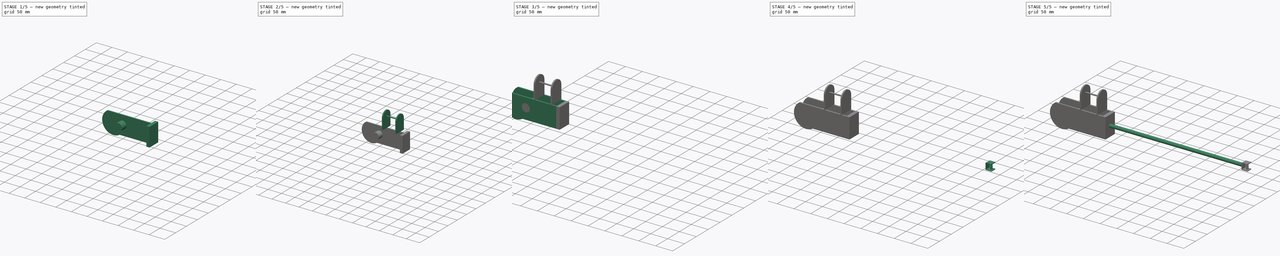
[diagram: build sequence overview — one tinted view per stage of 5, left to right]
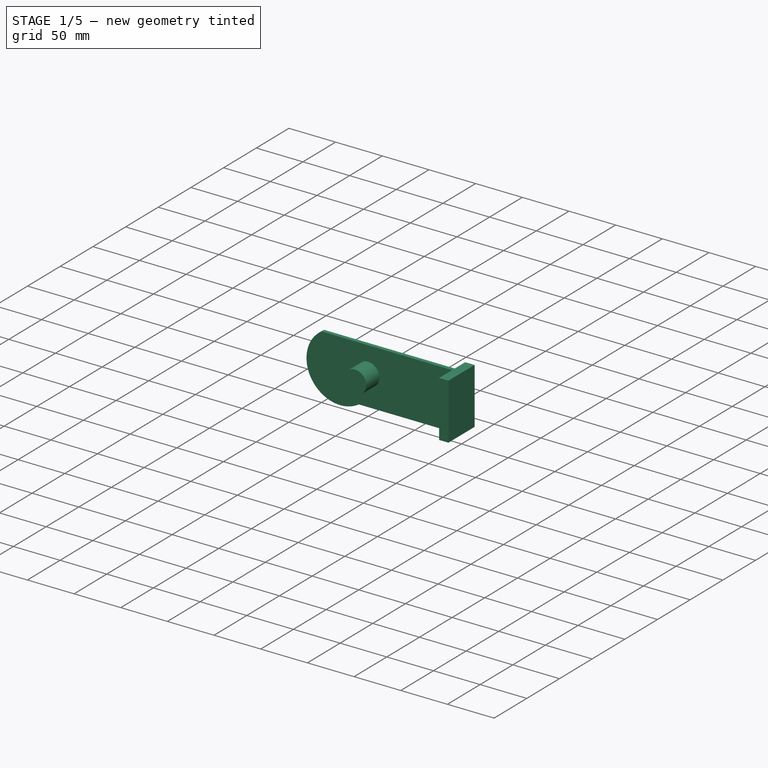
[diagram: stage 1 of 5 — iso view after this stage's code; geometry added in this stage tinted green]
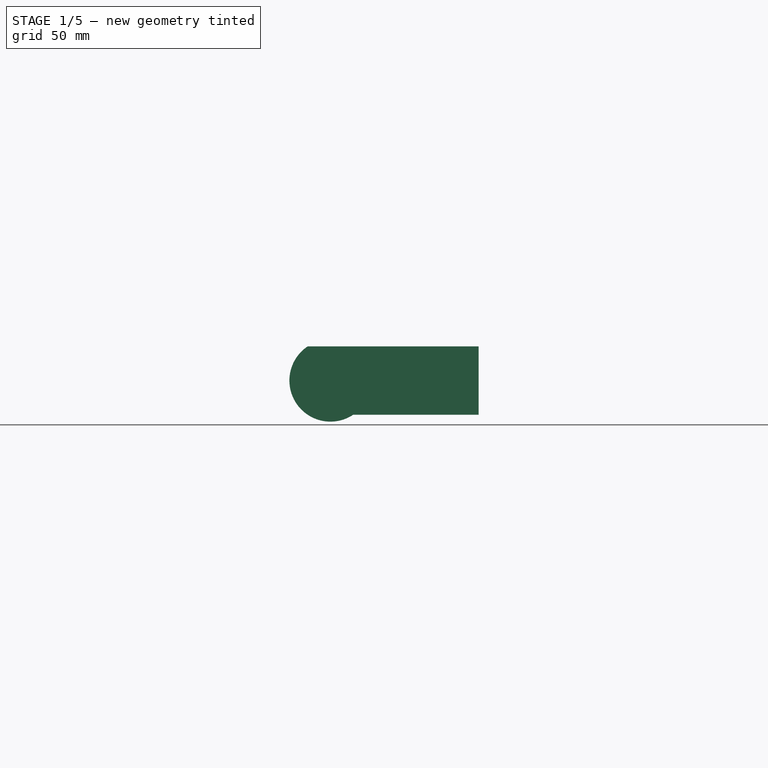
[diagram: stage 1 of 5 — front view after this stage's code; geometry added in this stage tinted green]
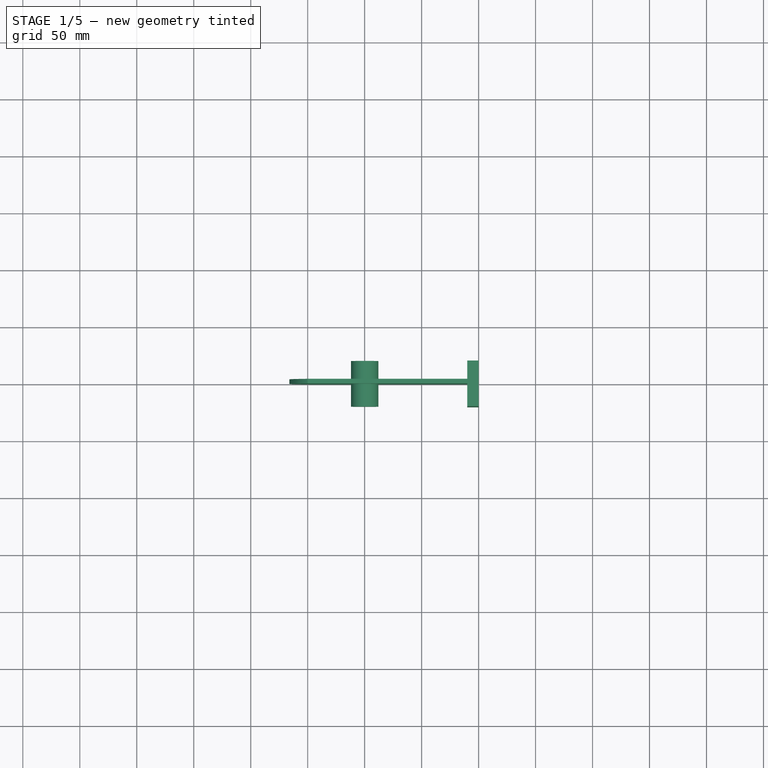
[diagram: stage 1 of 5 — top view after this stage's code; geometry added in this stage tinted green]
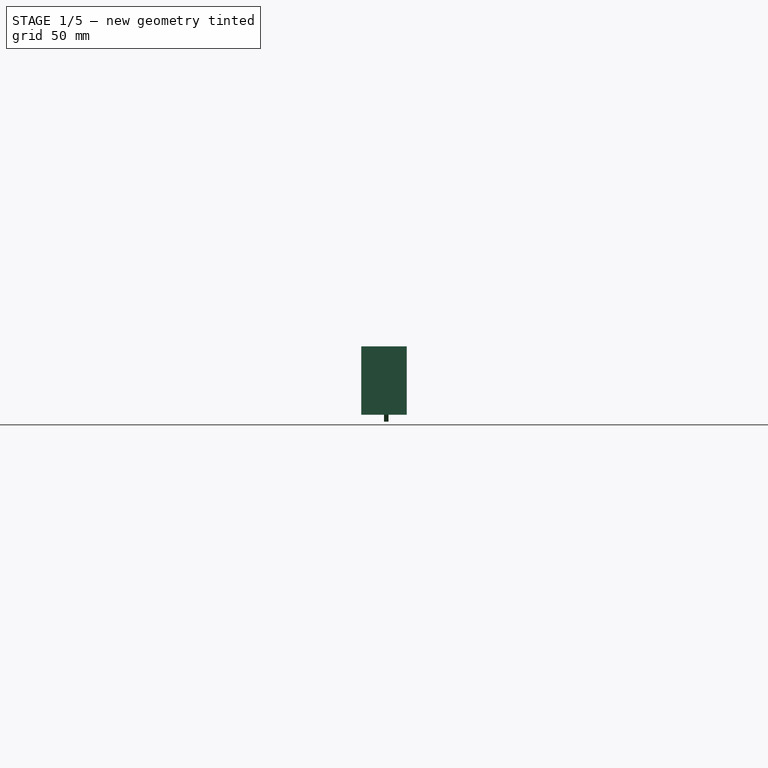
[diagram: stage 1 of 5 — right view after this stage's code; geometry added in this stage tinted green]
FCSTD DOCUMENT  (FreeCAD 0.20R29603 (Git))
Label: ws1
License: All rights reserved
LicenseURL: http://en.wikipedia.org/wiki/All_rights_reserved
objects: Part::FeaturePython×6, Part::Cylinder×4, Sketcher::SketchObject×2, PartDesign::Pad×2, PartDesign::Body×2, App::Link×2, Part::Box×2, Part::Thickness×1
note: 21 computed .brp shape members not serialized (recipe doc carries the construction recipe); baked Part::Feature solids carry a one-line shape summary decoded from their .brp

FEATURE [Sketcher::SketchObject] Sketch001
  FullyConstrained = true
  MapMode = 5
  Placement = pos=(0,0,0) rot=(1,0,0;1.5708rad)
  Support = -> [XZ_Plane001]
  sketch-geometry (4):
    g0: LineSegment StartX=50 StartY=-3.84723e-11 StartZ=0 EndX=-100 EndY=-3.84723e-11 EndZ=0
    g1: LineSegment StartX=50 StartY=-60 StartZ=0 EndX=-60 EndY=-60 EndZ=0
    g2: ArcOfCircle CenterX=-80 CenterY=-30 CenterZ=0 NormalX=0 NormalY=0 NormalZ=1 AngleXU=0 Radius=36.0555 StartAngle=2.1588 EndAngle=5.30039
    g3: LineSegment StartX=50 StartY=-3.84723e-11 StartZ=0 EndX=50 EndY=-60 EndZ=0
  constraints (13):
    c: PointOnObject(g0,g-1)
    c: Horizontal(g0)
    c: Horizontal(g1)
    c: Coincident(g2,g0)
    c: Coincident(g1,g2)
    c: Coincident(g3,g0)
    c: Coincident(g3,g1)
    c: Vertical(g3)
    c: DistanceX(g-1,g0) = 50
    c: DistanceX(g0,g-1) = 100
    c: DistanceY(g1,g0) = 60
    c: DistanceX(g1,g1) = 110
    c: DistanceX(g2,g1) = 20
FEATURE [PartDesign::Pad] Pad001  label="Pad002"
  Direction = (0,-1,2e-16)
  Length = 4
  Length2 = 10
  Placement = pos=(0,0,0) rot=(1,0,0;1.5708rad)
  Profile = -> Sketch001
  ReferenceAxis = -> Sketch001 [N_Axis]
  Reversed = true
  Type = 0
FEATURE [Part::Cylinder] Cylinder001
  Angle = 360
  AttacherType = Attacher::AttachEngine3D
  FirstAngle = 0
  Height = 40
  Placement = pos=(-50,20,-28) rot=(1,0,0;1.5708rad)
  Radius = 12
  SecondAngle = 0
FEATURE [Part::Box] Box  label="Cube"
  AttacherType = Attacher::AttachEngine3D
  Height = 60
  Length = 10
  Placement = pos=(40,-20,-60) rot=(0,0,1;0rad)
  Width = 40
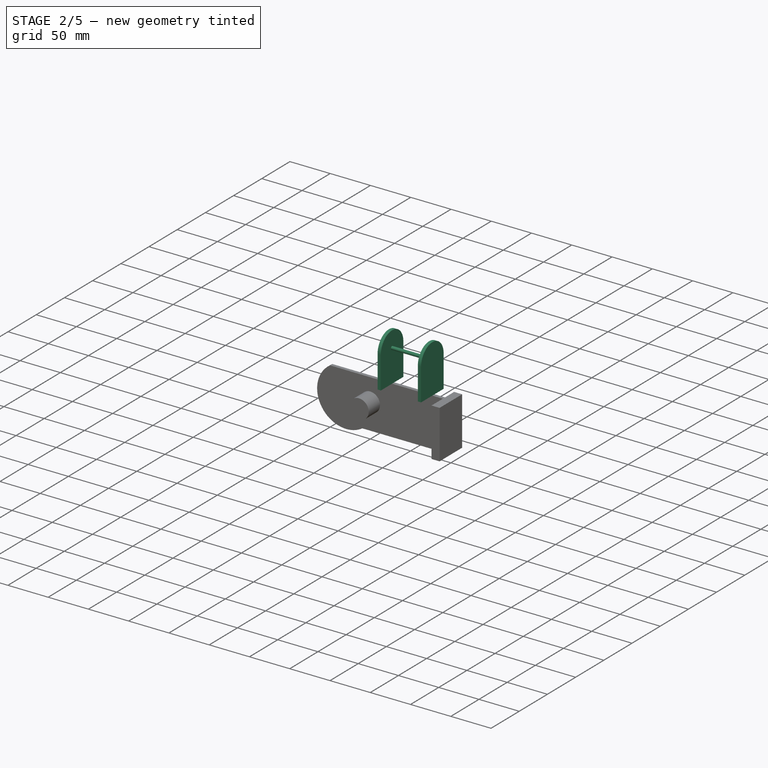
[diagram: stage 2 of 5 — iso view after this stage's code; geometry added in this stage tinted green]
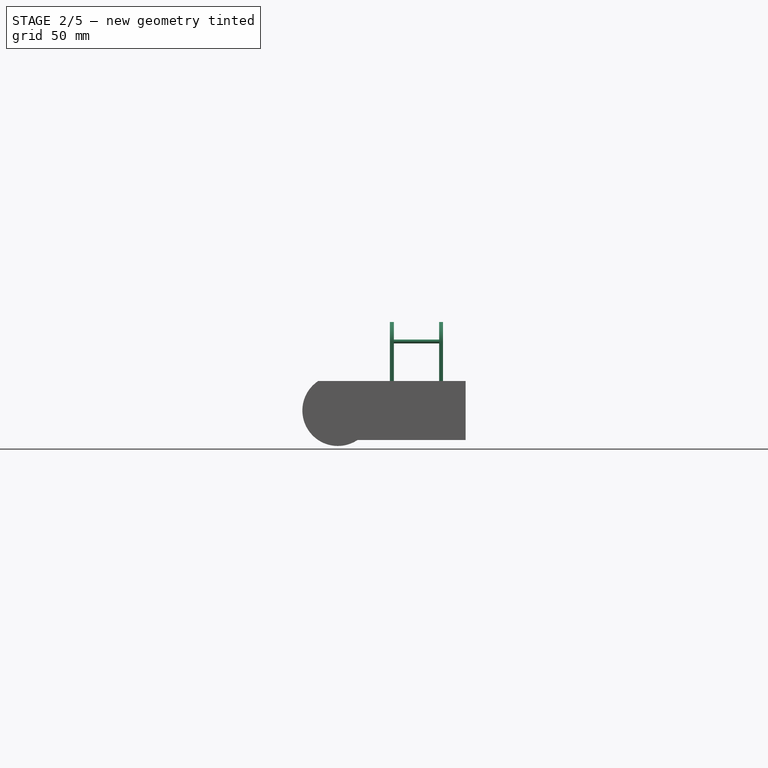
[diagram: stage 2 of 5 — front view after this stage's code; geometry added in this stage tinted green]
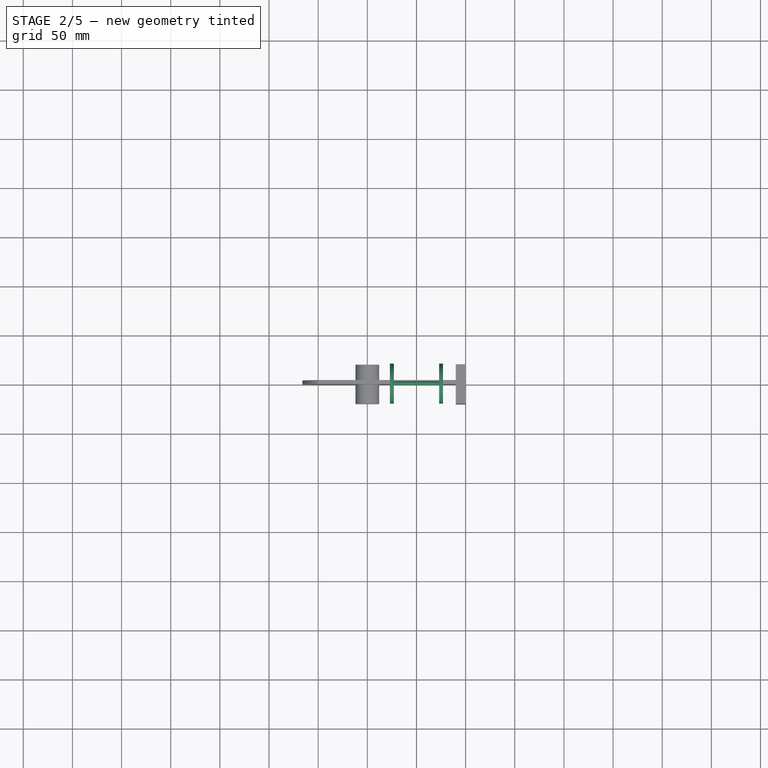
[diagram: stage 2 of 5 — top view after this stage's code; geometry added in this stage tinted green]
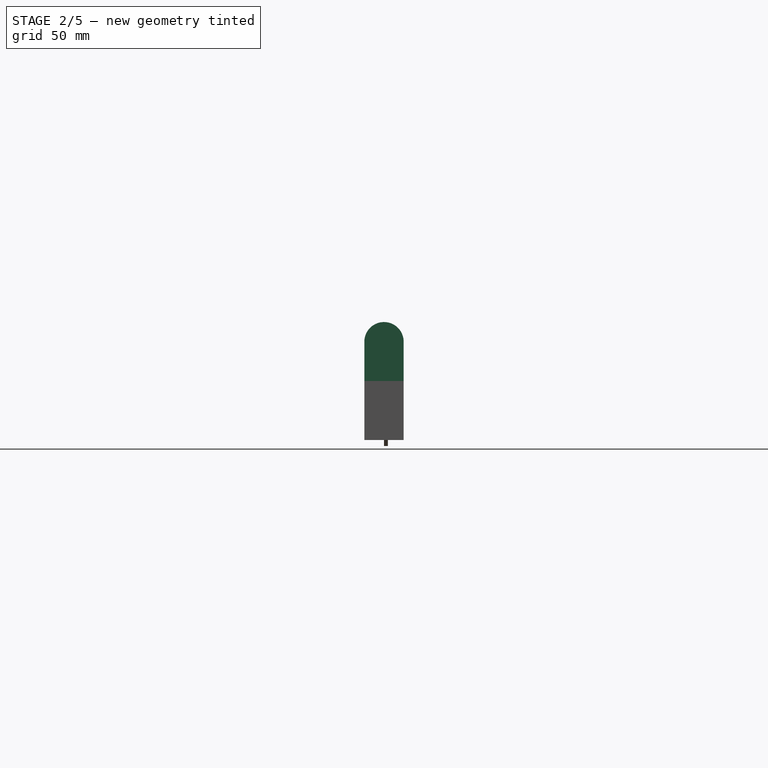
[diagram: stage 2 of 5 — right view after this stage's code; geometry added in this stage tinted green]
FEATURE [Sketcher::SketchObject] Sketch
  FullyConstrained = true
  MapMode = 5
  Placement = pos=(0,0,0) rot=(0.57735,0.57735,0.57735;2.0944rad)
  Support = -> [YZ_Plane]
  sketch-geometry (4):
    g0: LineSegment StartX=-20 StartY=0 StartZ=0 EndX=-20 EndY=40 EndZ=0
    g1: LineSegment StartX=-20 StartY=0 StartZ=0 EndX=20 EndY=0 EndZ=0
    g2: LineSegment StartX=20 StartY=0 StartZ=0 EndX=20 EndY=40 EndZ=0
    g3: ArcOfCircle CenterX=0 CenterY=40 CenterZ=0 NormalX=0 NormalY=0 NormalZ=1 AngleXU=0 Radius=20 StartAngle=-4.0634e-12 EndAngle=3.14159
  constraints (13):
    c: PointOnObject(g0,g-1)
    c: Vertical(g0)
    c: Coincident(g1,g0)
    c: PointOnObject(g1,g-1)
    c: Coincident(g2,g1)
    c: Vertical(g2)
    c: PointOnObject(g3,g-2)
    c: Coincident(g3,g0)
    c: Coincident(g2,g3)
    c: Equal(g0,g2)
    c: DistanceX(g0,g1) = 40
    c: DistanceY(g1,g2) = 40
    c: DistanceY(g-1,g3) = 40
FEATURE [PartDesign::Pad] Pad
  Direction = (1,-2e-16,3e-16)
  Length = 4
  Length2 = 10
  Midplane = true
  Placement = pos=(0,0,0) rot=(0.57735,0.57735,0.57735;2.0944rad)
  Profile = -> Sketch
  ReferenceAxis = -> Sketch [N_Axis]
  Type = 0
FEATURE [PartDesign::Body] Body
  Group = -> [Sketch,Pad]
  Origin = -> Origin
  Placement = pos=(25,0,0) rot=(0,0,1;0rad)
  Tip = -> Pad
FEATURE [Part::Cylinder] Cylinder
  Angle = 360
  AttacherType = Attacher::AttachEngine3D
  FirstAngle = 0
  Height = 50
  Placement = pos=(-24,0,40.26) rot=(0,1,0;1.5708rad)
  Radius = 2
  SecondAngle = 0
FEATURE [App::Link] Link  label="Pad001"
  LinkPlacement = pos=(-25,9.53673e-07,7.33423e-07) rot=(-0.57735,0.57735,0.57735;4.18879rad)
  LinkedObject = -> Pad
  Placement = pos=(-25,9.53673e-07,7.33423e-07) rot=(-0.57735,0.57735,0.57735;4.18879rad)
FEATURE [Part::FeaturePython] Connect  # WARN: FeaturePython — macro-defined, semantics opaque (R4)
  Objects = -> [Cylinder,Body,Link]
  Tolerance = 0
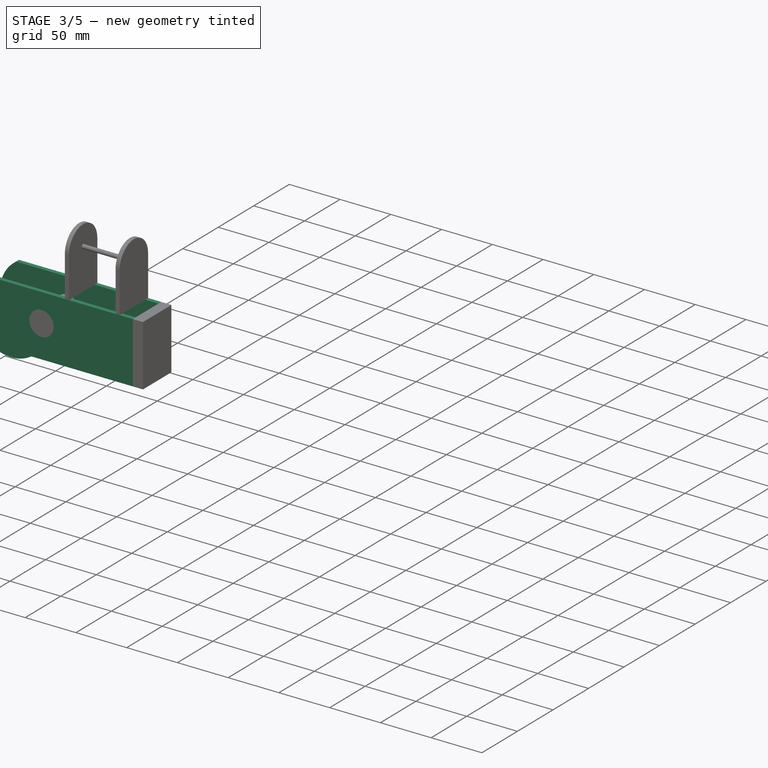
[diagram: stage 3 of 5 — iso view after this stage's code; geometry added in this stage tinted green]
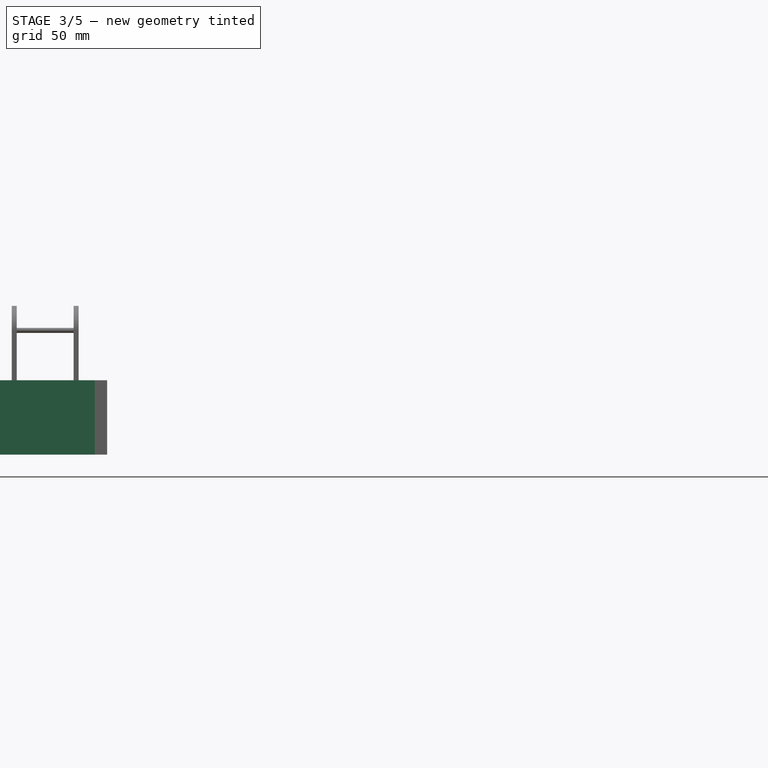
[diagram: stage 3 of 5 — front view after this stage's code; geometry added in this stage tinted green]
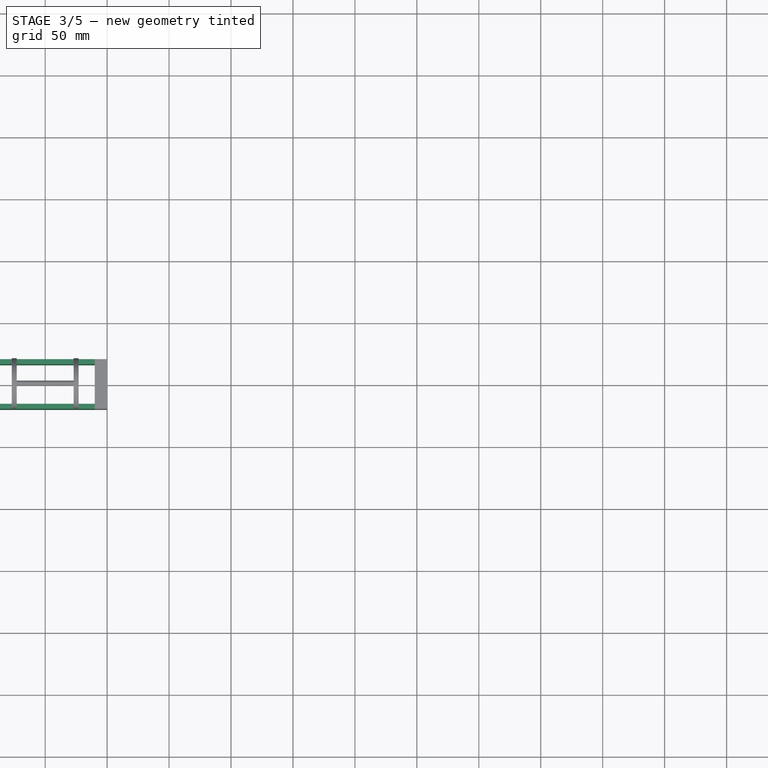
[diagram: stage 3 of 5 — top view after this stage's code; geometry added in this stage tinted green]
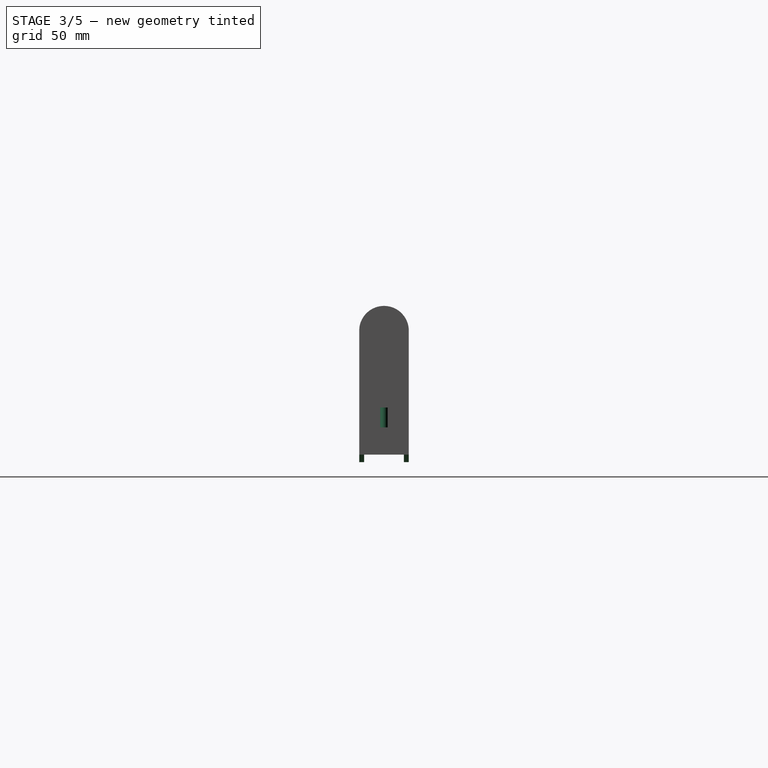
[diagram: stage 3 of 5 — right view after this stage's code; geometry added in this stage tinted green]
FEATURE [PartDesign::Body] Body001
  Group = -> [Sketch001,Pad001]
  Origin = -> Origin001
  Placement = pos=(0,-20,0) rot=(0,0,1;0rad)
  Tip = -> Pad001
FEATURE [App::Link] Link001  label="Pad003"
  LinkPlacement = pos=(0,16,0) rot=(1,0,0;1.5708rad)
  LinkedObject = -> Pad001
  Placement = pos=(0,16,0) rot=(1,0,0;1.5708rad)
FEATURE [Part::FeaturePython] Connect001  # WARN: FeaturePython — macro-defined, semantics opaque (R4)
  Objects = -> [Link001,Body001,Connect]
  Tolerance = 0
FEATURE [Part::Cylinder] Cylinder003
  Angle = 360
  AttacherType = Attacher::AttachEngine3D
  FirstAngle = 0
  Height = 16
  Placement = pos=(660,0,-38) rot=(0,0,1;0rad)
  Radius = 3
  SecondAngle = 0
FEATURE [Part::FeaturePython] Connect004  # WARN: FeaturePython — macro-defined, semantics opaque (R4)
  Objects = -> [Connect001,Cylinder001,Box]
  Tolerance = 0
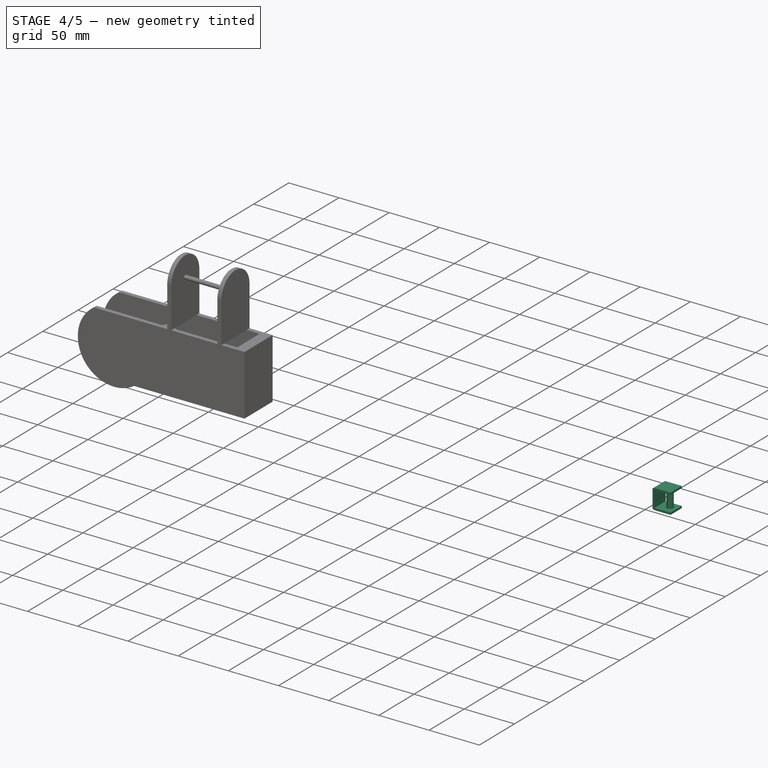
[diagram: stage 4 of 5 — iso view after this stage's code; geometry added in this stage tinted green]
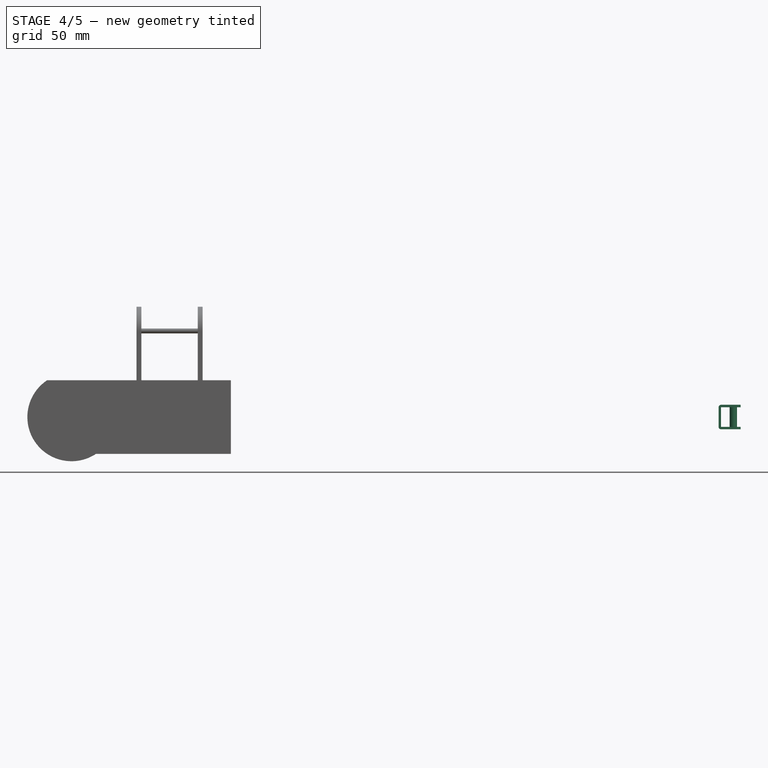
[diagram: stage 4 of 5 — front view after this stage's code; geometry added in this stage tinted green]
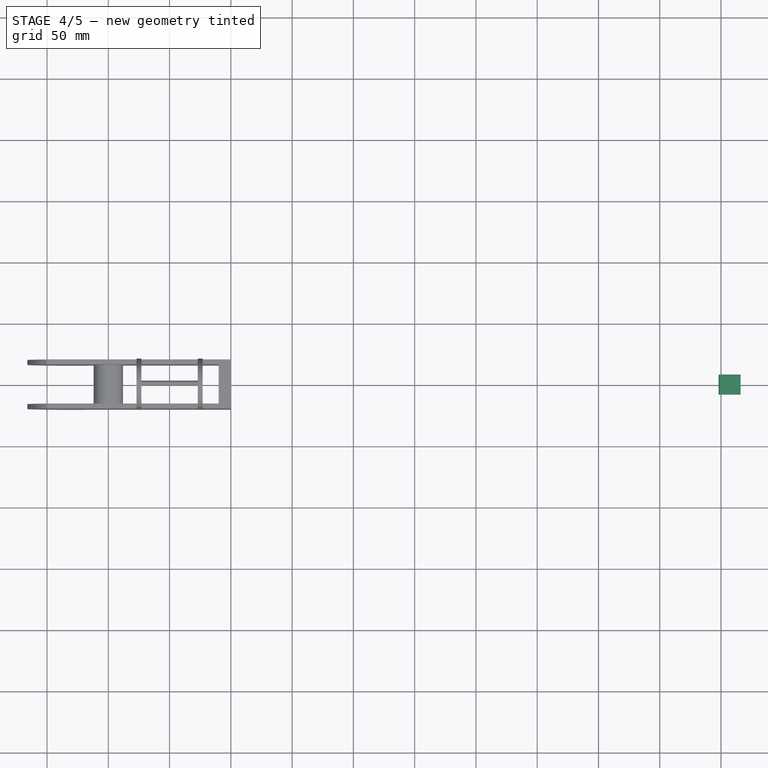
[diagram: stage 4 of 5 — top view after this stage's code; geometry added in this stage tinted green]
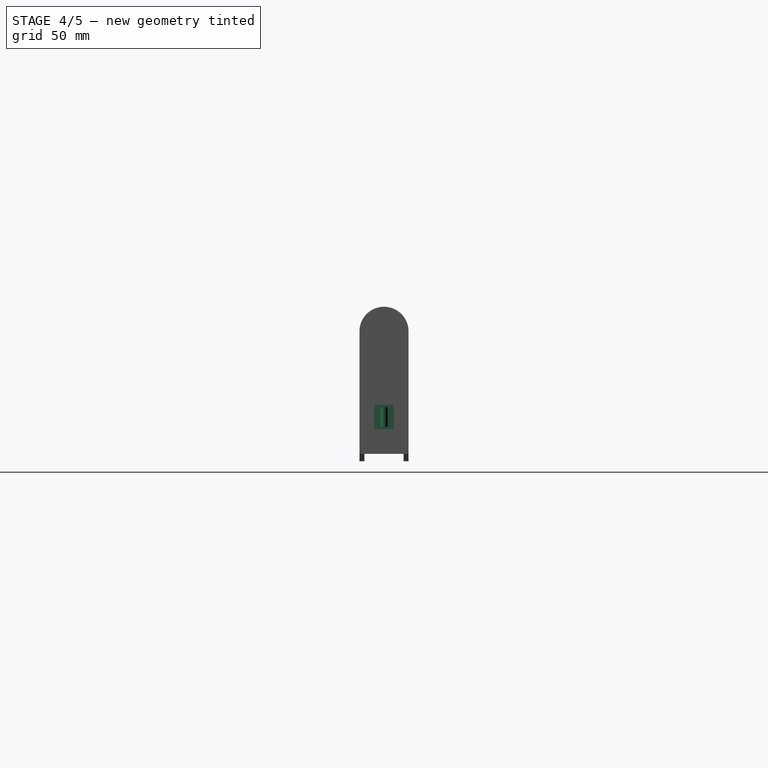
[diagram: stage 4 of 5 — right view after this stage's code; geometry added in this stage tinted green]
FEATURE [Part::Box] Box001  label="Cube001"
  AttacherType = Attacher::AttachEngine3D
  Height = 16
  Length = 16
  Placement = pos=(650,-8,-38) rot=(0,0,1;0rad)
  Width = 16
FEATURE [Part::Thickness] Thickness
  Faces = -> Box001 [Face2,Face3,Face4]
  Intersection = false
  Join = 0
  Mode = 0
  SelfIntersection = false
  Value = 2
FEATURE [Part::FeaturePython] Connect002  # WARN: FeaturePython — macro-defined, semantics opaque (R4)
  Objects = -> [Thickness,Cylinder003]
  Placement = pos=(-200,0,0) rot=(0,0,1;0rad)
  Tolerance = 0
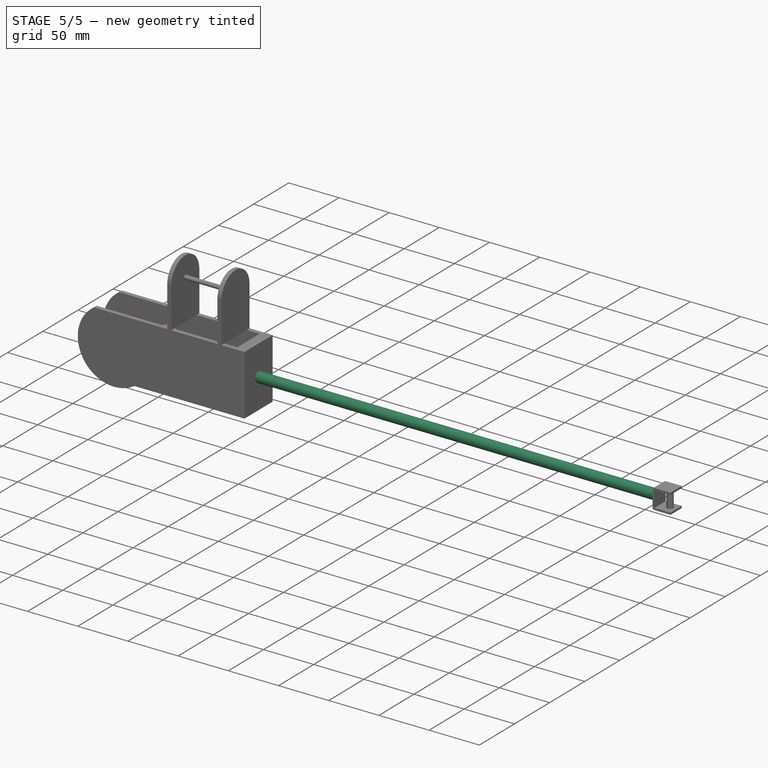
[diagram: stage 5 of 5 — iso view after this stage's code; geometry added in this stage tinted green]
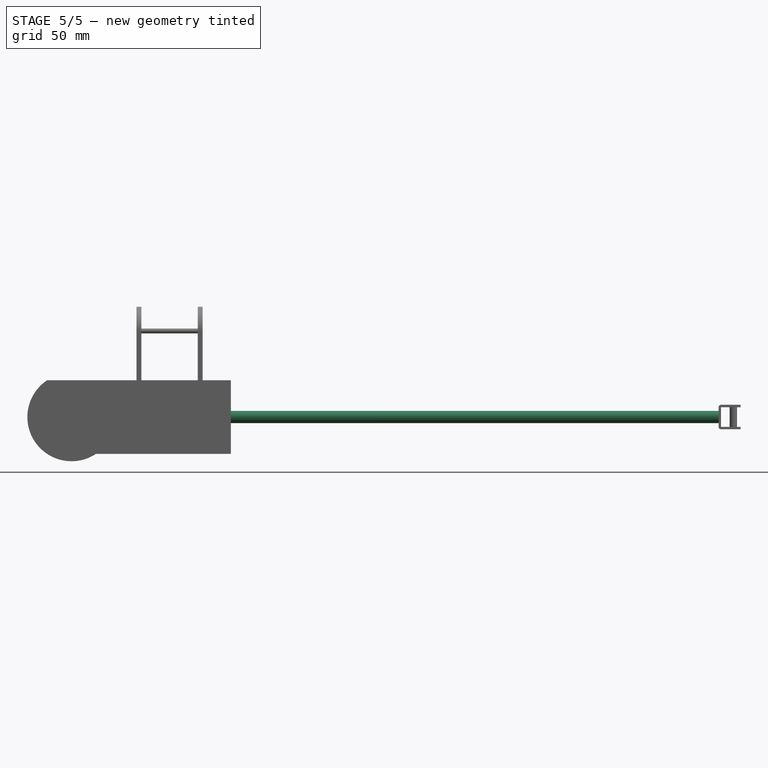
[diagram: stage 5 of 5 — front view after this stage's code; geometry added in this stage tinted green]
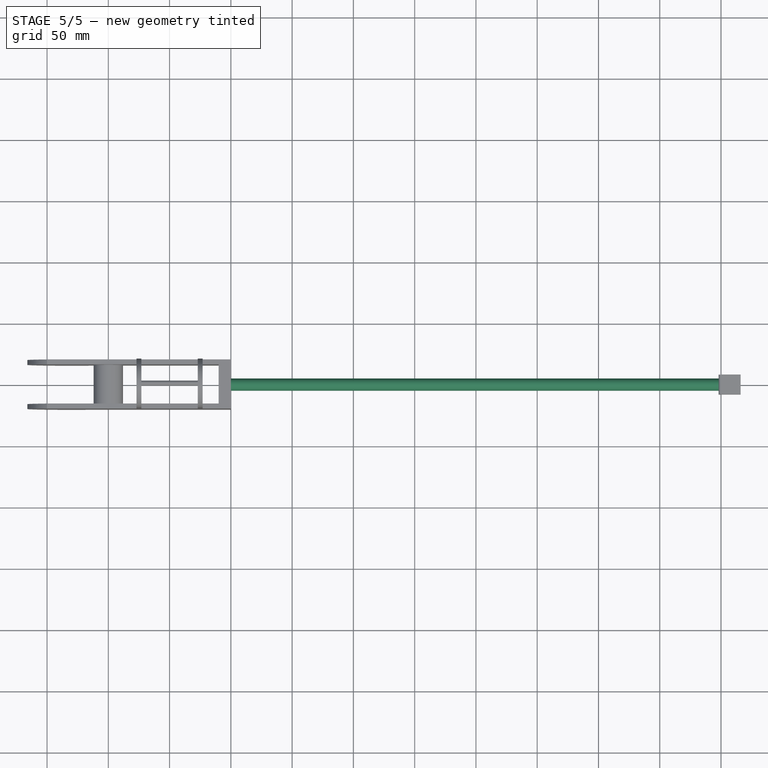
[diagram: stage 5 of 5 — top view after this stage's code; geometry added in this stage tinted green]
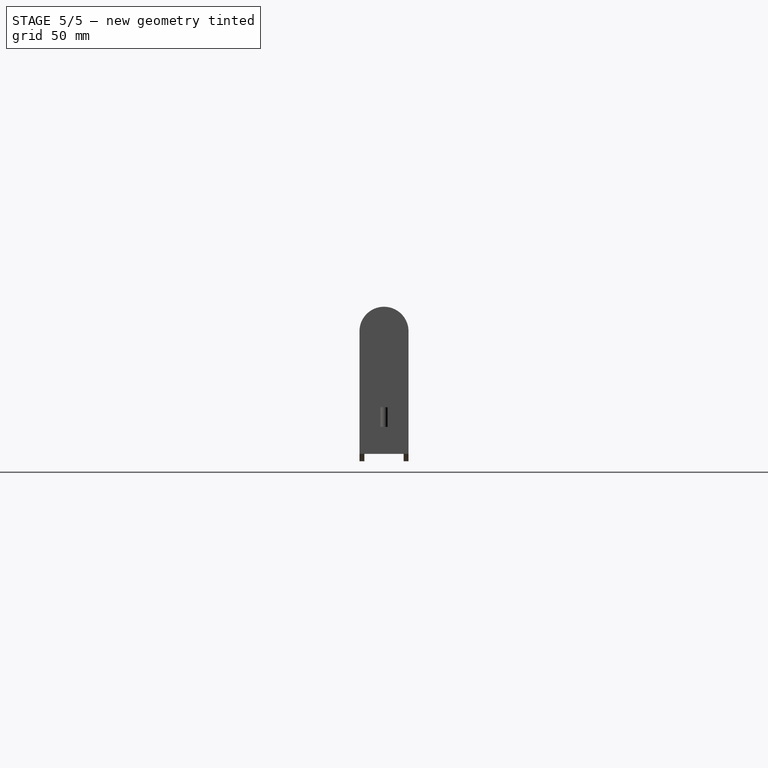
[diagram: stage 5 of 5 — right view after this stage's code; geometry added in this stage tinted green]
FEATURE [Part::Cylinder] Cylinder002
  Angle = 360
  AttacherType = Attacher::AttachEngine3D
  FirstAngle = 0
  Height = 400
  Placement = pos=(50,0,-30) rot=(0,1,0;1.5708rad)
  Radius = 5
  SecondAngle = 0
FEATURE [Part::FeaturePython] Connect003  # WARN: FeaturePython — macro-defined, semantics opaque (R4)
  Objects = -> [Cylinder002,Connect002]
  Tolerance = 0
FEATURE [Part::FeaturePython] Connect005  # WARN: FeaturePython — macro-defined, semantics opaque (R4)
  Objects = -> [Connect004,Connect003]
  Tolerance = 0
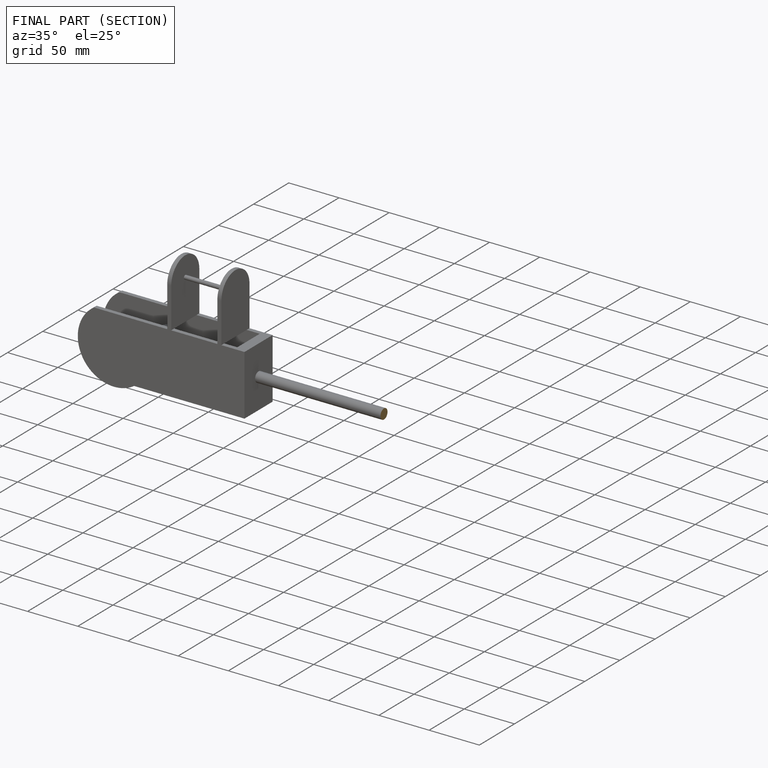
[diagram: finished part — half-section view (interior)]
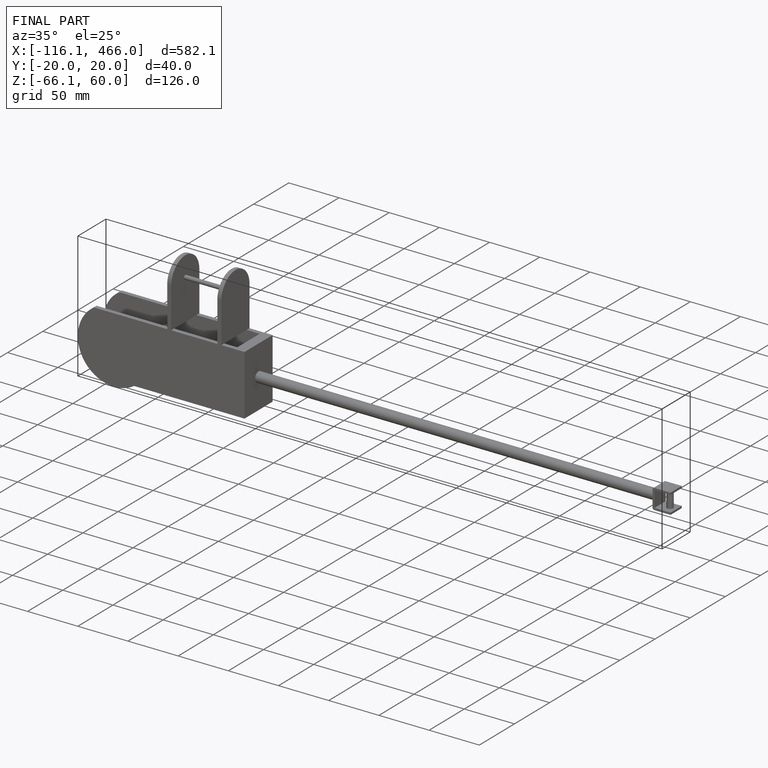
[diagram: finished part — iso view with bounding-box wireframe]
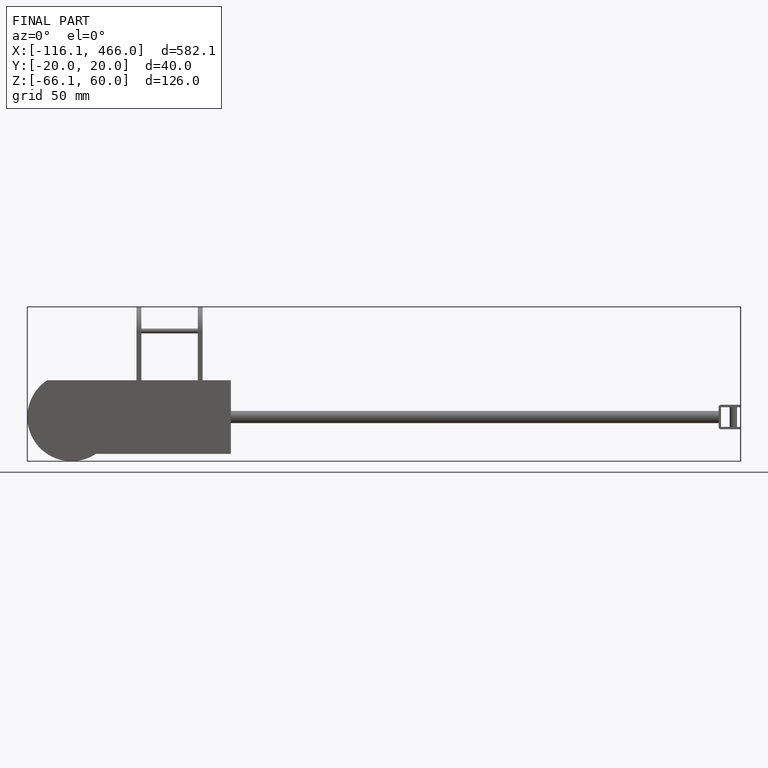
[diagram: finished part — front view with bounding-box wireframe]
